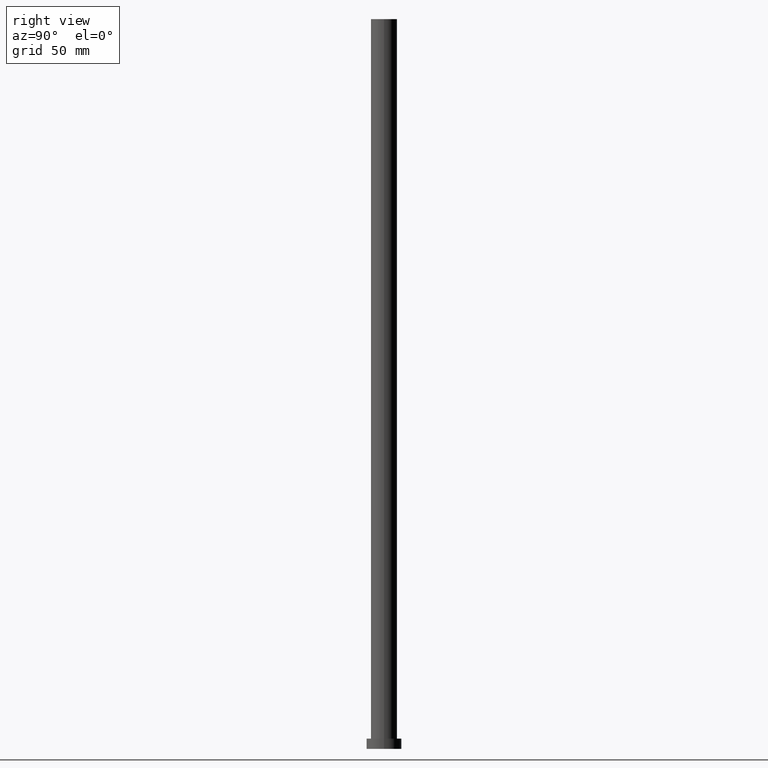
[diagram: clean part render]
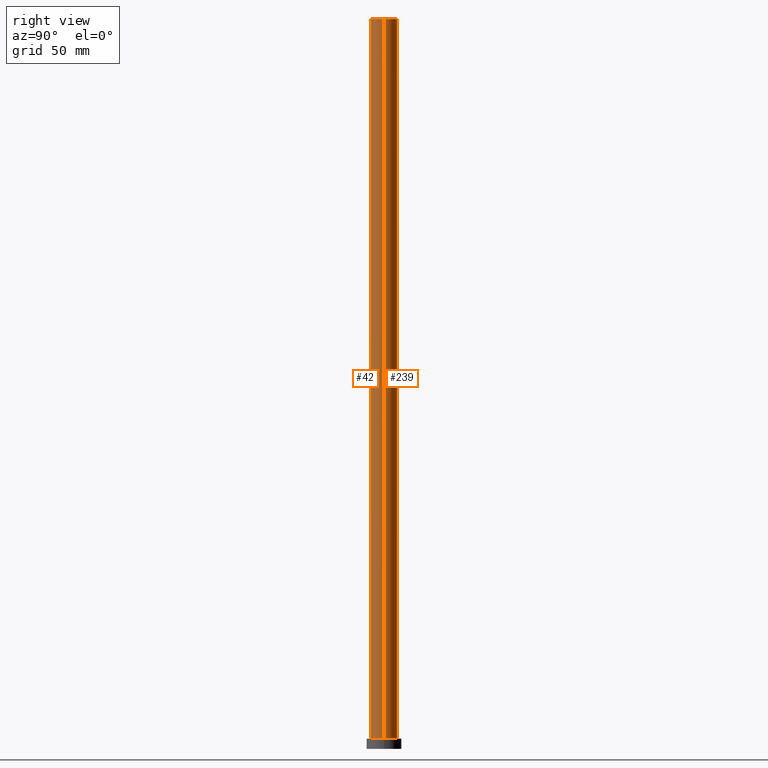
[diagram: same view with one multi-face feature highlighted, each face labeled with its STEP entity id]
A machine part, right view. The highlighted faces form ONE feature: a constant-radius fillet chain: 2 tangent blend faces with common blend radius 9 mm. The faces share edges in the B-rep.
Their STEP definitions:
[1] entity #239 (Cylinder):
#7 = VERTEX_POINT ( 'NONE', #83 ) ;
#13 = ORIENTED_EDGE ( 'NONE', *, *, #242, .F. ) ;
#17 = CARTESIAN_POINT ( 'NONE',  ( 9.000000000000000000, 1.102182119232617714E-15, 500.0000000000000000 ) ) ;
#28 = EDGE_CURVE ( 'NONE', #97, #158, #102, .T. ) ;
#35 = CARTESIAN_POINT ( 'NONE',  ( 0.000000000000000000, 0.000000000000000000, 500.0000000000000000 ) ) ;
#45 = VECTOR ( 'NONE', #203, 1000.000000000000000 ) ;
#49 = VERTEX_POINT ( 'NONE', #254 ) ;
#51 = CIRCLE ( 'NONE', #204, 9.000000000000000000 ) ;
#55 = FACE_OUTER_BOUND ( 'NONE', #114, .T. ) ;
#59 = CARTESIAN_POINT ( 'NONE',  ( 0.000000000000000000, 0.000000000000000000, 7.000000000000000000 ) ) ;
#63 = CARTESIAN_POINT ( 'NONE',  ( -9.000000000000000000, 0.000000000000000000, 500.0000000000000000 ) ) ;
#66 = DIRECTION ( 'NONE',  ( 1.000000000000000000, 0.000000000000000000, 0.000000000000000000 ) ) ;
#70 = EDGE_CURVE ( 'NONE', #158, #49, #51, .T. ) ;
#83 = CARTESIAN_POINT ( 'NONE',  ( -9.000000000000000000, 0.000000000000000000, 500.0000000000000000 ) ) ;
#84 = AXIS2_PLACEMENT_3D ( 'NONE', #35, #115, #113 ) ;
#86 = ORIENTED_EDGE ( 'NONE', *, *, #28, .T. ) ;
#97 = VERTEX_POINT ( 'NONE', #133 ) ;
#102 = LINE ( 'NONE', #17, #45 ) ;
#113 = DIRECTION ( 'NONE',  ( 1.000000000000000000, 0.000000000000000000, 0.000000000000000000 ) ) ;
#114 = EDGE_LOOP ( 'NONE', ( #13, #86, #230, #181 ) ) ;
#115 = DIRECTION ( 'NONE',  ( 0.000000000000000000, 0.000000000000000000, 1.000000000000000000 ) ) ;
#122 = LINE ( 'NONE', #63, #194 ) ;
#126 = CARTESIAN_POINT ( 'NONE',  ( 0.000000000000000000, 0.000000000000000000, 500.0000000000000000 ) ) ;
#128 = DIRECTION ( 'NONE',  ( -1.000000000000000000, 0.000000000000000000, 0.000000000000000000 ) ) ;
#133 = CARTESIAN_POINT ( 'NONE',  ( 9.000000000000000000, 1.102182119232617714E-15, 500.0000000000000000 ) ) ;
#134 = CYLINDRICAL_SURFACE ( 'NONE', #209, 9.000000000000000000 ) ;
#139 = DIRECTION ( 'NONE',  ( -0.000000000000000000, -0.000000000000000000, -1.000000000000000000 ) ) ;
#158 = VERTEX_POINT ( 'NONE', #184 ) ;
#181 = ORIENTED_EDGE ( 'NONE', *, *, #212, .F. ) ;
#184 = CARTESIAN_POINT ( 'NONE',  ( 9.000000000000000000, 1.102182119232617714E-15, 7.000000000000000000 ) ) ;
#194 = VECTOR ( 'NONE', #139, 1000.000000000000000 ) ;
#203 = DIRECTION ( 'NONE',  ( -0.000000000000000000, -0.000000000000000000, -1.000000000000000000 ) ) ;
#204 = AXIS2_PLACEMENT_3D ( 'NONE', #59, #241, #66 ) ;
#209 = AXIS2_PLACEMENT_3D ( 'NONE', #126, #213, #128 ) ;
#212 = EDGE_CURVE ( 'NONE', #7, #49, #122, .T. ) ;
#213 = DIRECTION ( 'NONE',  ( -0.000000000000000000, -0.000000000000000000, -1.000000000000000000 ) ) ;
#230 = ORIENTED_EDGE ( 'NONE', *, *, #70, .T. ) ;
#236 = CIRCLE ( 'NONE', #84, 9.000000000000000000 ) ;
#239 = ADVANCED_FACE ( 'NONE', ( #55 ), #134, .T. ) ;
#241 = DIRECTION ( 'NONE',  ( 0.000000000000000000, 0.000000000000000000, 1.000000000000000000 ) ) ;
#242 = EDGE_CURVE ( 'NONE', #97, #7, #236, .T. ) ;
#254 = CARTESIAN_POINT ( 'NONE',  ( -9.000000000000000000, 0.000000000000000000, 7.000000000000000000 ) ) ;
[2] entity #42 (Cylinder):
#7 = VERTEX_POINT ( 'NONE', #83 ) ;
#17 = CARTESIAN_POINT ( 'NONE',  ( 9.000000000000000000, 1.102182119232617714E-15, 500.0000000000000000 ) ) ;
#21 = EDGE_CURVE ( 'NONE', #49, #158, #234, .T. ) ;
#28 = EDGE_CURVE ( 'NONE', #97, #158, #102, .T. ) ;
#42 = ADVANCED_FACE ( 'NONE', ( #137 ), #154, .T. ) ;
#45 = VECTOR ( 'NONE', #203, 1000.000000000000000 ) ;
#49 = VERTEX_POINT ( 'NONE', #254 ) ;
#61 = ORIENTED_EDGE ( 'NONE', *, *, #21, .T. ) ;
#63 = CARTESIAN_POINT ( 'NONE',  ( -9.000000000000000000, 0.000000000000000000, 500.0000000000000000 ) ) ;
#73 = AXIS2_PLACEMENT_3D ( 'NONE', #132, #235, #221 ) ;
#83 = CARTESIAN_POINT ( 'NONE',  ( -9.000000000000000000, 0.000000000000000000, 500.0000000000000000 ) ) ;
#94 = CARTESIAN_POINT ( 'NONE',  ( 0.000000000000000000, 0.000000000000000000, 7.000000000000000000 ) ) ;
#96 = CARTESIAN_POINT ( 'NONE',  ( 0.000000000000000000, 0.000000000000000000, 500.0000000000000000 ) ) ;
#97 = VERTEX_POINT ( 'NONE', #133 ) ;
#101 = AXIS2_PLACEMENT_3D ( 'NONE', #94, #163, #117 ) ;
#102 = LINE ( 'NONE', #17, #45 ) ;
#108 = CIRCLE ( 'NONE', #169, 9.000000000000000000 ) ;
#117 = DIRECTION ( 'NONE',  ( 1.000000000000000000, 0.000000000000000000, 0.000000000000000000 ) ) ;
#122 = LINE ( 'NONE', #63, #194 ) ;
#129 = ORIENTED_EDGE ( 'NONE', *, *, #212, .T. ) ;
#132 = CARTESIAN_POINT ( 'NONE',  ( 0.000000000000000000, 0.000000000000000000, 500.0000000000000000 ) ) ;
#133 = CARTESIAN_POINT ( 'NONE',  ( 9.000000000000000000, 1.102182119232617714E-15, 500.0000000000000000 ) ) ;
#137 = FACE_OUTER_BOUND ( 'NONE', #173, .T. ) ;
#139 = DIRECTION ( 'NONE',  ( -0.000000000000000000, -0.000000000000000000, -1.000000000000000000 ) ) ;
#154 = CYLINDRICAL_SURFACE ( 'NONE', #73, 9.000000000000000000 ) ;
#158 = VERTEX_POINT ( 'NONE', #184 ) ;
#163 = DIRECTION ( 'NONE',  ( 0.000000000000000000, 0.000000000000000000, 1.000000000000000000 ) ) ;
#169 = AXIS2_PLACEMENT_3D ( 'NONE', #96, #250, #211 ) ;
#173 = EDGE_LOOP ( 'NONE', ( #179, #214, #129, #61 ) ) ;
#179 = ORIENTED_EDGE ( 'NONE', *, *, #28, .F. ) ;
#184 = CARTESIAN_POINT ( 'NONE',  ( 9.000000000000000000, 1.102182119232617714E-15, 7.000000000000000000 ) ) ;
#194 = VECTOR ( 'NONE', #139, 1000.000000000000000 ) ;
#203 = DIRECTION ( 'NONE',  ( -0.000000000000000000, -0.000000000000000000, -1.000000000000000000 ) ) ;
#211 = DIRECTION ( 'NONE',  ( 1.000000000000000000, 0.000000000000000000, 0.000000000000000000 ) ) ;
#212 = EDGE_CURVE ( 'NONE', #7, #49, #122, .T. ) ;
#214 = ORIENTED_EDGE ( 'NONE', *, *, #229, .F. ) ;
#221 = DIRECTION ( 'NONE',  ( -1.000000000000000000, 0.000000000000000000, 0.000000000000000000 ) ) ;
#229 = EDGE_CURVE ( 'NONE', #7, #97, #108, .T. ) ;
#234 = CIRCLE ( 'NONE', #101, 9.000000000000000000 ) ;
#235 = DIRECTION ( 'NONE',  ( -0.000000000000000000, -0.000000000000000000, -1.000000000000000000 ) ) ;
#250 = DIRECTION ( 'NONE',  ( 0.000000000000000000, 0.000000000000000000, 1.000000000000000000 ) ) ;
#254 = CARTESIAN_POINT ( 'NONE',  ( -9.000000000000000000, 0.000000000000000000, 7.000000000000000000 ) ) ;